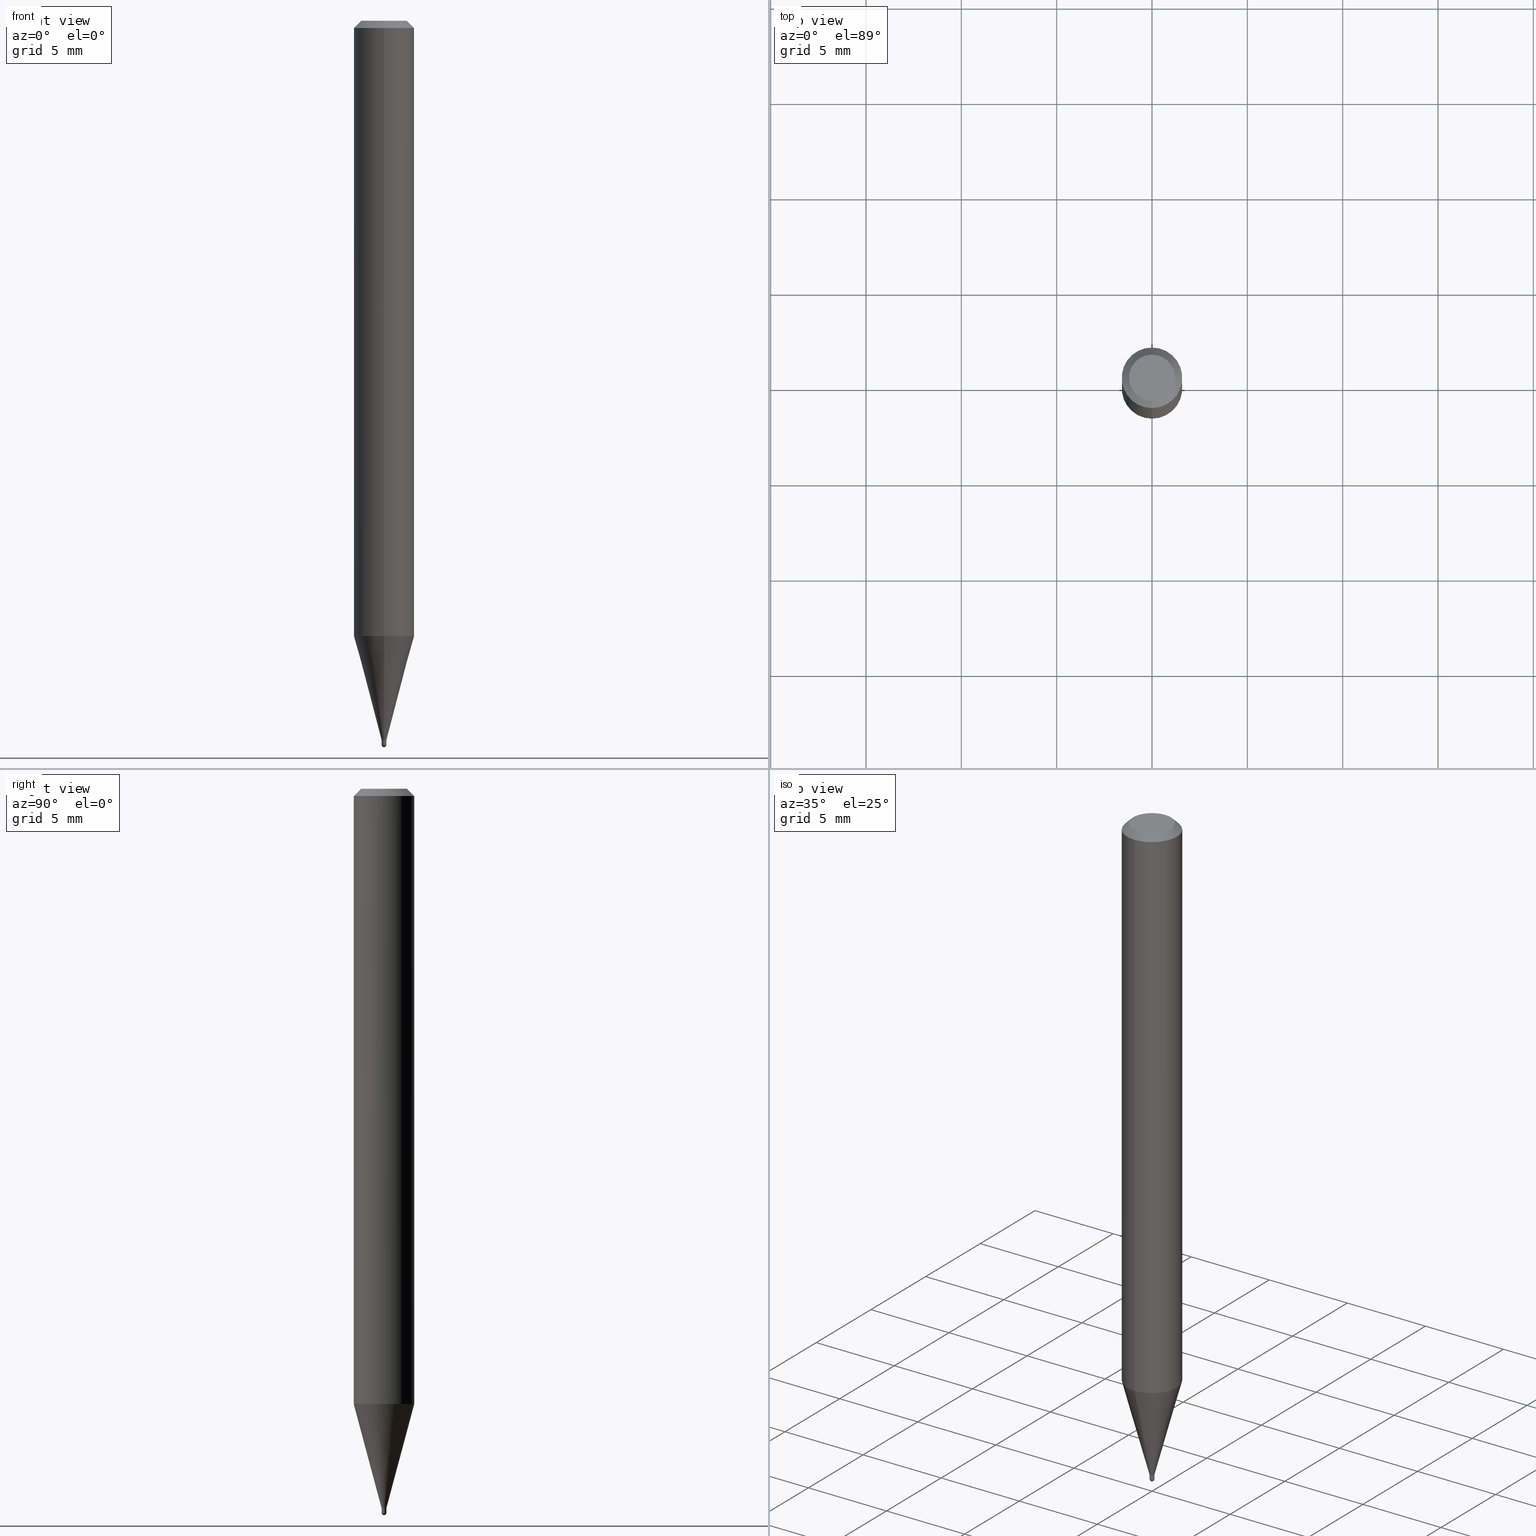
[diagram: canonical four-view strip — front | top / right | iso, engineering-drawing reading convention]
A machine part, canonical four-view strip (front | top / right | iso — engineering-drawing reading convention). The complete STEP part file that produces these views, byte-faithful:
ISO-10303-21;
HEADER;
FILE_DESCRIPTION (( 'STEP AP203' ),
    '1' );
FILE_NAME ('01367.STEP',
    '2024-03-07T19:59:12',
    ( '' ),
    ( '' ),
    'SwSTEP 2.0',
    'SolidWorks 2023',
    '' );
FILE_SCHEMA (( 'CONFIG_CONTROL_DESIGN' ));
ENDSEC;

DATA;
#1 = ADVANCED_FACE ( 'NONE', ( #381 ), #507, .F. ) ;
#2 = CARTESIAN_POINT ( 'NONE',  ( 0.000000000000000000, 0.000000000000000000, 0.000000000000000000 ) ) ;
#3 = CARTESIAN_POINT ( 'NONE',  ( 3.570031653184250291E-29, -5.342841604884812470E-15, -1.495000000000000107 ) ) ;
#4 = DIRECTION ( 'NONE',  ( 1.000000000000000000, -6.982962677686308520E-15, 0.000000000000000000 ) ) ;
#5 = DATE_AND_TIME ( #9, #417 ) ;
#6 = CC_DESIGN_PERSON_AND_ORGANIZATION_ASSIGNMENT ( #321, #370, ( #476 ) ) ;
#7 = CARTESIAN_POINT ( 'NONE',  ( 3.552713678803991097E-17, 0.004999999999994617257, -1.485000000000000098 ) ) ;
#8 = DIRECTION ( 'NONE',  ( -2.446180720103943212E-29, 3.490461837591790659E-15, 1.000000000000000000 ) ) ;
#9 = CALENDAR_DATE ( 2024, 7, 3 ) ;
#10 = VECTOR ( 'NONE', #193, 39.37007874015748143 ) ;
#11 = CIRCLE ( 'NONE', #389, 0.004999999999999800611 ) ;
#12 = FACE_OUTER_BOUND ( 'NONE', #175, .T. ) ;
#13 = ORIENTED_EDGE ( 'NONE', *, *, #191, .T. ) ;
#14 = APPLICATION_PROTOCOL_DEFINITION ( 'international standard', 'config_control_design', 1994, #511 ) ;
#15 = ORIENTED_EDGE ( 'NONE', *, *, #468, .F. ) ;
#16 = EDGE_CURVE ( 'NONE', #489, #424, #103, .T. ) ;
#17 = ORIENTED_EDGE ( 'NONE', *, *, #247, .T. ) ;
#18 = AXIS2_PLACEMENT_3D ( 'NONE', #384, #31, #443 ) ;
#19 = CONICAL_SURFACE ( 'NONE', #312, 0.004999999999999800611, 0.2617993877991576235 ) ;
#20 = ORIENTED_EDGE ( 'NONE', *, *, #218, .T. ) ;
#21 = DIRECTION ( 'NONE',  ( 6.982962677686265133E-15, 1.000000000000000000, 0.000000000000000000 ) ) ;
#22 = VERTEX_POINT ( 'NONE', #383 ) ;
#23 = DIRECTION ( 'NONE',  ( -2.446180720103943212E-29, 3.490461837591790659E-15, 1.000000000000000000 ) ) ;
#24 = DIRECTION ( 'NONE',  ( -6.982962677686265922E-15, -1.000000000000000000, 3.490461837591790659E-15 ) ) ;
#25 = DIRECTION ( 'NONE',  ( -1.807323732225379838E-15, -0.2588190451025252914, 0.9659258262890670910 ) ) ;
#26 = FACE_OUTER_BOUND ( 'NONE', #412, .T. ) ;
#27 = VECTOR ( 'NONE', #277, 39.37007874015748143 ) ;
#28 = AXIS2_PLACEMENT_3D ( 'NONE', #48, #23, #462 ) ;
#29 = DIRECTION ( 'NONE',  ( -6.982962677686265922E-15, -1.000000000000000000, 0.000000000000000000 ) ) ;
#30 = LINE ( 'NONE', #188, #286 ) ;
#31 = DIRECTION ( 'NONE',  ( -2.446180720103943212E-29, 3.490461837591790659E-15, 1.000000000000000000 ) ) ;
#32 =( LENGTH_UNIT ( ) NAMED_UNIT ( * ) SI_UNIT ( $, .METRE. ) );
#33 = DIRECTION ( 'NONE',  ( -6.982962677686265922E-15, -1.000000000000000000, 3.490461837591790264E-15 ) ) ;
#34 =( GEOMETRIC_REPRESENTATION_CONTEXT ( 3 ) GLOBAL_UNCERTAINTY_ASSIGNED_CONTEXT ( ( #457 ) ) GLOBAL_UNIT_ASSIGNED_CONTEXT ( ( #158, #35, #110 ) ) REPRESENTATION_CONTEXT ( 'NONE', 'WORKASPACE' ) );
#35 =( NAMED_UNIT ( * ) PLANE_ANGLE_UNIT ( ) SI_UNIT ( $, .RADIAN. ) );
#36 = DIRECTION ( 'NONE',  ( -2.446180720103943212E-29, 3.490461837591790659E-15, 1.000000000000000000 ) ) ;
#37 = CARTESIAN_POINT ( 'NONE',  ( -4.364351673553606573E-16, -0.06250000000000444089, -1.270407078564795622 ) ) ;
#38 = DIRECTION ( 'NONE',  ( -2.445468806185136597E-29, 3.491481338843145583E-15, 1.000000000000000000 ) ) ;
#39 = APPROVAL_STATUS ( 'not_yet_approved' ) ;
#40 = DIRECTION ( 'NONE',  ( -7.105427357600999492E-15, -1.000000000000000000, 0.000000000000000000 ) ) ;
#41 = CC_DESIGN_PERSON_AND_ORGANIZATION_ASSIGNMENT ( #488, #165, ( #287 ) ) ;
#42 = CIRCLE ( 'NONE', #368, 0.004999999999999800611 ) ;
#43 = EDGE_CURVE ( 'NONE', #22, #98, #67, .T. ) ;
#44 = AXIS2_PLACEMENT_3D ( 'NONE', #115, #385, #233 ) ;
#45 = FACE_OUTER_BOUND ( 'NONE', #181, .T. ) ;
#46 = ORIENTED_EDGE ( 'NONE', *, *, #455, .T. ) ;
#47 = DIRECTION ( 'NONE',  ( -1.000000000000000000, 7.105427357601001070E-15, -4.926315508542082329E-29 ) ) ;
#48 = CARTESIAN_POINT ( 'NONE',  ( 3.632578369354356333E-29, -5.183335828823809468E-15, -1.485000000000000098 ) ) ;
#49 = ORIENTED_EDGE ( 'NONE', *, *, #192, .T. ) ;
#50 = APPROVAL_STATUS ( 'not_yet_approved' ) ;
#51 = AXIS2_PLACEMENT_3D ( 'NONE', #239, #400, #317 ) ;
#52 = CC_DESIGN_APPROVAL ( #182, ( #121 ) ) ;
#53 = CARTESIAN_POINT ( 'NONE',  ( 3.655975865246779122E-29, -5.219764601570503141E-15, -1.495000000000000107 ) ) ;
#54 = ORIENTED_EDGE ( 'NONE', *, *, #497, .F. ) ;
#55 = ADVANCED_FACE ( 'NONE', ( #26 ), #343, .F. ) ;
#56 = ORIENTED_EDGE ( 'NONE', *, *, #396, .F. ) ;
#57 = ORIENTED_EDGE ( 'NONE', *, *, #218, .F. ) ;
#58 = EDGE_CURVE ( 'NONE', #98, #424, #305, .T. ) ;
#59 = AXIS2_PLACEMENT_3D ( 'NONE', #243, #320, #394 ) ;
#60 = AXIS2_PLACEMENT_3D ( 'NONE', #53, #133, #178 ) ;
#61 = ORIENTED_EDGE ( 'NONE', *, *, #192, .F. ) ;
#62 = DIRECTION ( 'NONE',  ( -2.446180720103943212E-29, 3.490461837591790659E-15, 1.000000000000000000 ) ) ;
#63 = CARTESIAN_POINT ( 'NONE',  ( 3.632578369354356894E-29, -5.183335828823810257E-15, -1.485000000000000320 ) ) ;
#64 = FACE_OUTER_BOUND ( 'NONE', #339, .T. ) ;
#65 = ORIENTED_EDGE ( 'NONE', *, *, #344, .F. ) ;
#66 = CARTESIAN_POINT ( 'NONE',  ( 3.197442310923994306E-17, 0.004499999999994691406, -1.485000000000000320 ) ) ;
#67 = CIRCLE ( 'NONE', #235, 0.004499999999999875627 ) ;
#68 = EDGE_CURVE ( 'NONE', #234, #254, #30, .T. ) ;
#69 = LOCAL_TIME ( 14, 59, 12.00000000000000000, #168 ) ;
#70 = VERTEX_POINT ( 'NONE', #470 ) ;
#71 = DIRECTION ( 'NONE',  ( -2.445468806185136597E-29, 3.491481338843145583E-15, 1.000000000000000000 ) ) ;
#72 = ORIENTED_EDGE ( 'NONE', *, *, #16, .F. ) ;
#73 = LENGTH_MEASURE_WITH_UNIT ( LENGTH_MEASURE( 0.02539999999999999897 ), #32 );
#74 = CARTESIAN_POINT ( 'NONE',  ( 4.364351673553919652E-16, 0.06249999999999995143, -0.01500000000000022669 ) ) ;
#75 = CONICAL_SURFACE ( 'NONE', #469, 0.06250000000000000000, 0.7853981633974483900 ) ;
#76 = DIRECTION ( 'NONE',  ( 1.000000000000000000, 0.000000000000000000, 0.000000000000000000 ) ) ;
#77 = CARTESIAN_POINT ( 'NONE',  ( 3.669271080155917288E-31, -5.235692756387689045E-17, -0.01500000000000000812 ) ) ;
#78 = DATE_TIME_ROLE ( 'classification_date' ) ;
#79 = DIRECTION ( 'NONE',  ( -6.982962677686265922E-15, -1.000000000000000000, 0.000000000000000000 ) ) ;
#80 = CALENDAR_DATE ( 2024, 7, 3 ) ;
#81 = CARTESIAN_POINT ( 'NONE',  ( 3.631521177184928698E-29, -5.184849788182072281E-15, -1.485000000000000320 ) ) ;
#82 = CC_DESIGN_PERSON_AND_ORGANIZATION_ASSIGNMENT ( #282, #246, ( #287 ) ) ;
#83 = VECTOR ( 'NONE', #118, 39.37007874015748854 ) ;
#84 = APPROVAL_DATE_TIME ( #439, #427 ) ;
#85 = AXIS2_PLACEMENT_3D ( 'NONE', #291, #428, #149 ) ;
#86 = DIRECTION ( 'NONE',  ( -1.000000000000000000, 6.982962677686265922E-15, -4.883557194083113462E-29 ) ) ;
#87 = DIRECTION ( 'NONE',  ( -6.982962677686265922E-15, -1.000000000000000000, 3.490461837591790264E-15 ) ) ;
#88 = ORIENTED_EDGE ( 'NONE', *, *, #455, .F. ) ;
#89 = APPROVAL_ROLE ( '' ) ;
#90 = PRODUCT_RELATED_PRODUCT_CATEGORY ( 'detail', '', ( #297 ) ) ;
#91 = EDGE_CURVE ( 'NONE', #70, #424, #112, .T. ) ;
#92 = DIRECTION ( 'NONE',  ( 2.446180720103943212E-29, -3.490461837591790659E-15, -1.000000000000000000 ) ) ;
#93 = ORIENTED_EDGE ( 'NONE', *, *, #256, .T. ) ;
#94 = AXIS2_PLACEMENT_3D ( 'NONE', #435, #86, #125 ) ;
#95 = APPLICATION_CONTEXT ( 'configuration controlled 3d designs of mechanical parts and assemblies' ) ;
#96 = CIRCLE ( 'NONE', #376, 0.004999999999999878673 ) ;
#97 = ORIENTED_EDGE ( 'NONE', *, *, #444, .T. ) ;
#98 = VERTEX_POINT ( 'NONE', #467 ) ;
#99 = CC_DESIGN_PERSON_AND_ORGANIZATION_ASSIGNMENT ( #432, #190, ( #297 ) ) ;
#100 = EDGE_CURVE ( 'NONE', #186, #408, #275, .T. ) ;
#101 = ORIENTED_EDGE ( 'NONE', *, *, #247, .F. ) ;
#102 = DIRECTION ( 'NONE',  ( -2.446180720103943212E-29, 3.490461837591790659E-15, 1.000000000000000000 ) ) ;
#103 = CIRCLE ( 'NONE', #245, 0.004999999999999801478 ) ;
#104 = APPROVAL_PERSON_ORGANIZATION ( #441, #427, #328 ) ;
#105 = ORIENTED_EDGE ( 'NONE', *, *, #401, .T. ) ;
#106 = FACE_OUTER_BOUND ( 'NONE', #496, .T. ) ;
#107 = CARTESIAN_POINT ( 'NONE',  ( 0.000000000000000000, 0.000000000000000000, 0.000000000000000000 ) ) ;
#108 = CYLINDRICAL_SURFACE ( 'NONE', #460, 0.004999999999999801478 ) ;
#109 = EDGE_LOOP ( 'NONE', ( #212, #171, #72, #334 ) ) ;
#110 =( NAMED_UNIT ( * ) SI_UNIT ( $, .STERADIAN. ) SOLID_ANGLE_UNIT ( ) );
#111 = CONICAL_SURFACE ( 'NONE', #351, 0.004499999999999875627, 0.7853981633974753684 ) ;
#112 = LINE ( 'NONE', #150, #10 ) ;
#113 = CARTESIAN_POINT ( 'NONE',  ( 3.631521177184928698E-29, -5.184849788182072281E-15, -1.485000000000000320 ) ) ;
#114 = ORIENTED_EDGE ( 'NONE', *, *, #344, .T. ) ;
#115 = CARTESIAN_POINT ( 'NONE',  ( 3.655975865246779122E-29, -5.219764601570503141E-15, -1.495000000000000107 ) ) ;
#116 = FACE_OUTER_BOUND ( 'NONE', #179, .T. ) ;
#117 = PERSON ( 'UNSPECIFIED', 'UNSPECIFIED', 'UNSPECIFIED', ('UNSPECIFIED'), ('UNSPECIFIED'), ('UNSPECIFIED') ) ;
#118 = DIRECTION ( 'NONE',  ( 1.839019923739650408E-15, 0.2588190451025320082, 0.9659258262890650926 ) ) ;
#119 = AXIS2_PLACEMENT_3D ( 'NONE', #77, #281, #359 ) ;
#120 = ORIENTED_EDGE ( 'NONE', *, *, #433, .F. ) ;
#121 = SECURITY_CLASSIFICATION ( '', '', #242 ) ;
#122 = CARTESIAN_POINT ( 'NONE',  ( 4.440892098500625669E-16, 0.06250000000000000000, -2.181538648494869162E-16 ) ) ;
#123 = CARTESIAN_POINT ( 'NONE',  ( -0.004999999999999878673, -5.166780058088283853E-15, -1.495000000000000107 ) ) ;
#124 = COORDINATED_UNIVERSAL_TIME_OFFSET ( 5, 0, .BEHIND. ) ;
#125 = DIRECTION ( 'NONE',  ( 6.982962677686265922E-15, 1.000000000000000000, 0.000000000000000000 ) ) ;
#126 = EDGE_CURVE ( 'NONE', #139, #454, #366, .T. ) ;
#127 = APPROVAL_ROLE ( '' ) ;
#128 = DIRECTION ( 'NONE',  ( 6.982962677686265922E-15, 1.000000000000000000, 0.000000000000000000 ) ) ;
#129 = AXIS2_PLACEMENT_3D ( 'NONE', #170, #486, #448 ) ;
#130 = CARTESIAN_POINT ( 'NONE',  ( -4.364351673553912750E-16, -0.06250000000000005551, -0.01499999999999979128 ) ) ;
#131 = ORIENTED_EDGE ( 'NONE', *, *, #201, .T. ) ;
#132 = EDGE_CURVE ( 'NONE', #219, #489, #440, .T. ) ;
#133 = DIRECTION ( 'NONE',  ( -2.445468806185136597E-29, 3.491481338843145583E-15, 1.000000000000000000 ) ) ;
#134 = VERTEX_POINT ( 'NONE', #157 ) ;
#135 = PERSON_AND_ORGANIZATION_ROLE ( 'classification_officer' ) ;
#136 = ORIENTED_EDGE ( 'NONE', *, *, #126, .F. ) ;
#137 = CIRCLE ( 'NONE', #425, 0.004999999999999878673 ) ;
#138 = ORIENTED_EDGE ( 'NONE', *, *, #43, .F. ) ;
#139 = VERTEX_POINT ( 'NONE', #318 ) ;
#140 = MANIFOLD_SOLID_BREP ( 'Body-Move/Copy2[1]', #414 ) ;
#141 = DIRECTION ( 'NONE',  ( -4.937700262164681360E-15, -0.7071067811865642261, 0.7071067811865308084 ) ) ;
#142 = DIRECTION ( 'NONE',  ( -2.446180720103943212E-29, 3.490461837591790659E-15, 1.000000000000000000 ) ) ;
#143 = DIRECTION ( 'NONE',  ( -6.982962677686265922E-15, -1.000000000000000000, 0.000000000000000000 ) ) ;
#144 = CIRCLE ( 'NONE', #44, 0.004999999999999878673 ) ;
#145 = ORIENTED_EDGE ( 'NONE', *, *, #444, .F. ) ;
#146 = FACE_OUTER_BOUND ( 'NONE', #252, .T. ) ;
#147 = EDGE_CURVE ( 'NONE', #454, #232, #244, .T. ) ;
#148 = ORIENTED_EDGE ( 'NONE', *, *, #262, .F. ) ;
#149 = DIRECTION ( 'NONE',  ( -6.982962677686265922E-15, -1.000000000000000000, 4.370956789862821150E-15 ) ) ;
#150 = CARTESIAN_POINT ( 'NONE',  ( 3.552713678800359255E-17, 0.004999999999999801478, -1.745230918795825885E-17 ) ) ;
#151 = DIRECTION ( 'NONE',  ( -6.982962677686265922E-15, -1.000000000000000000, 3.490461837591790659E-15 ) ) ;
#152 = ORIENTED_EDGE ( 'NONE', *, *, #262, .T. ) ;
#153 = CIRCLE ( 'NONE', #260, 0.06250000000000000000 ) ;
#154 = CARTESIAN_POINT ( 'NONE',  ( -4.364351673553916201E-16, -0.06250000000000000000, 2.181538648494869162E-16 ) ) ;
#155 = DIRECTION ( 'NONE',  ( -6.982962677686265922E-15, -1.000000000000000000, 3.490461837591790659E-15 ) ) ;
#156 = CARTESIAN_POINT ( 'NONE',  ( 3.840629472727447874E-16, 0.04749999999999999362, -1.747056831868805136E-16 ) ) ;
#157 = CARTESIAN_POINT ( 'NONE',  ( 4.440892098500935790E-16, 0.06249999999999556605, -1.270407078564796288 ) ) ;
#158 =( CONVERSION_BASED_UNIT ( 'INCH', #73 ) LENGTH_UNIT ( ) NAMED_UNIT ( #248 ) );
#159 = CARTESIAN_POINT ( 'NONE',  ( 3.632578369354356894E-29, -5.183335828823810257E-15, -1.485000000000000320 ) ) ;
#160 = AXIS2_PLACEMENT_3D ( 'NONE', #81, #38, #315 ) ;
#161 = VECTOR ( 'NONE', #25, 39.37007874015748143 ) ;
#162 = DIRECTION ( 'NONE',  ( -1.000000000000000000, 6.982962677686265922E-15, -4.883557194083113462E-29 ) ) ;
#163 = APPROVAL_DATE_TIME ( #5, #490 ) ;
#164 = FACE_OUTER_BOUND ( 'NONE', #109, .T. ) ;
#165 = PERSON_AND_ORGANIZATION_ROLE ( 'creator' ) ;
#166 = CARTESIAN_POINT ( 'NONE',  ( 3.669271080155917288E-31, -5.235692756387689045E-17, -0.01500000000000000812 ) ) ;
#167 = VECTOR ( 'NONE', #308, 39.37007874015748143 ) ;
#168 = COORDINATED_UNIVERSAL_TIME_OFFSET ( 5, 0, .BEHIND. ) ;
#169 = APPROVAL_PERSON_ORGANIZATION ( #399, #182, #89 ) ;
#170 = CARTESIAN_POINT ( 'NONE',  ( 0.000000000000000000, 0.000000000000000000, 0.000000000000000000 ) ) ;
#171 = ORIENTED_EDGE ( 'NONE', *, *, #58, .T. ) ;
#172 = APPROVAL_STATUS ( 'not_yet_approved' ) ;
#173 = ORIENTED_EDGE ( 'NONE', *, *, #421, .T. ) ;
#174 = EDGE_CURVE ( 'NONE', #403, #292, #483, .T. ) ;
#175 = EDGE_LOOP ( 'NONE', ( #347, #456, #114, #267, #88 ) ) ;
#176 = ADVANCED_FACE ( 'NONE', ( #164 ), #358, .T. ) ;
#177 = ORIENTED_EDGE ( 'NONE', *, *, #468, .T. ) ;
#178 = DIRECTION ( 'NONE',  ( 1.000000000000000000, -6.982962677686308520E-15, 0.000000000000000000 ) ) ;
#179 = EDGE_LOOP ( 'NONE', ( #148, #459, #54, #303 ) ) ;
#180 = LINE ( 'NONE', #221, #161 ) ;
#181 = EDGE_LOOP ( 'NONE', ( #255, #152, #101, #65 ) ) ;
#182 = APPROVAL ( #39, 'UNSPECIFIED' ) ;
#183 = CARTESIAN_POINT ( 'NONE',  ( 3.669271080155917288E-31, -5.235692756387689045E-17, -0.01500000000000000812 ) ) ;
#184 = AXIS2_PLACEMENT_3D ( 'NONE', #3, #162, #128 ) ;
#185 = LOCAL_TIME ( 14, 59, 12.00000000000000000, #209 ) ;
#186 = VERTEX_POINT ( 'NONE', #478 ) ;
#187 = LINE ( 'NONE', #122, #484 ) ;
#188 = CARTESIAN_POINT ( 'NONE',  ( -0.004999999999999878673, 3.552713678800414722E-17, -2.459467545127393143E-31 ) ) ;
#189 = ADVANCED_FACE ( 'NONE', ( #437 ), #353, .T. ) ;
#190 = PERSON_AND_ORGANIZATION_ROLE ( 'design_owner' ) ;
#191 = EDGE_CURVE ( 'NONE', #258, #234, #195, .T. ) ;
#192 = EDGE_CURVE ( 'NONE', #70, #134, #390, .T. ) ;
#193 = DIRECTION ( 'NONE',  ( -2.446180720103942932E-29, 3.490461837591790659E-15, 1.000000000000000000 ) ) ;
#194 = LINE ( 'NONE', #509, #279 ) ;
#195 = CIRCLE ( 'NONE', #311, 0.004999999999999878673 ) ;
#196 = CARTESIAN_POINT ( 'NONE',  ( 3.632578369354356894E-29, -5.183335828823810257E-15, -1.485000000000000320 ) ) ;
#197 = CIRCLE ( 'NONE', #85, 0.06250000000000000000 ) ;
#198 = SPHERICAL_SURFACE ( 'NONE', #94, 0.005000000000000179648 ) ;
#199 = DIRECTION ( 'NONE',  ( -2.446180720103942932E-29, 3.490461837591790659E-15, 1.000000000000000000 ) ) ;
#200 = CARTESIAN_POINT ( 'NONE',  ( 4.440892098500937762E-16, 0.06249999999999993755, -0.01500000000000022669 ) ) ;
#201 = EDGE_CURVE ( 'NONE', #408, #254, #259, .T. ) ;
#202 = CARTESIAN_POINT ( 'NONE',  ( 3.655975865246779122E-29, -5.219764601570503141E-15, -1.495000000000000107 ) ) ;
#203 = AXIS2_PLACEMENT_3D ( 'NONE', #402, #485, #21 ) ;
#204 = AXIS2_PLACEMENT_3D ( 'NONE', #207, #322, #481 ) ;
#205 = AXIS2_PLACEMENT_3D ( 'NONE', #183, #92, #299 ) ;
#206 = CALENDAR_DATE ( 2024, 7, 3 ) ;
#207 = CARTESIAN_POINT ( 'NONE',  ( 3.631355278994305397E-29, -5.181590597905014741E-15, -1.484500000000000597 ) ) ;
#208 = ORIENTED_EDGE ( 'NONE', *, *, #132, .F. ) ;
#209 = COORDINATED_UNIVERSAL_TIME_OFFSET ( 5, 0, .BEHIND. ) ;
#210 = DIRECTION ( 'NONE',  ( -6.982962677686265922E-15, -1.000000000000000000, 0.000000000000000000 ) ) ;
#211 = CYLINDRICAL_SURFACE ( 'NONE', #129, 0.004999999999999878673 ) ;
#212 = ORIENTED_EDGE ( 'NONE', *, *, #43, .T. ) ;
#213 = COORDINATED_UNIVERSAL_TIME_OFFSET ( 5, 0, .BEHIND. ) ;
#214 = APPROVAL_PERSON_ORGANIZATION ( #288, #490, #127 ) ;
#215 = CARTESIAN_POINT ( 'NONE',  ( 3.491481338846766553E-17, 0.004999999999994747361, -1.495000000000000107 ) ) ;
#216 = EDGE_LOOP ( 'NONE', ( #377, #217, #226, #224 ) ) ;
#217 = ORIENTED_EDGE ( 'NONE', *, *, #240, .T. ) ;
#218 = EDGE_CURVE ( 'NONE', #349, #232, #278, .T. ) ;
#219 = VERTEX_POINT ( 'NONE', #472 ) ;
#220 = ORIENTED_EDGE ( 'NONE', *, *, #506, .F. ) ;
#221 = CARTESIAN_POINT ( 'NONE',  ( -3.491481338839360505E-17, -0.005000000000004983097, -1.485000000000000098 ) ) ;
#222 = CC_DESIGN_DATE_AND_TIME_ASSIGNMENT ( #284, #480, ( #476 ) ) ;
#223 = ADVANCED_FACE ( 'NONE', ( #116 ), #357, .T. ) ;
#224 = ORIENTED_EDGE ( 'NONE', *, *, #256, .F. ) ;
#225 = DIRECTION ( 'NONE',  ( -6.982962677686266711E-15, -1.000000000000000000, 3.490461837591791053E-15 ) ) ;
#226 = ORIENTED_EDGE ( 'NONE', *, *, #354, .T. ) ;
#227 = DIRECTION ( 'NONE',  ( -2.446180720103943212E-29, 3.490461837591790659E-15, 1.000000000000000000 ) ) ;
#228 = CIRCLE ( 'NONE', #204, 0.004999999999999801478 ) ;
#229 = CONICAL_SURFACE ( 'NONE', #28, 0.004999999999999800611, 0.2617993877991576235 ) ;
#230 = ORIENTED_EDGE ( 'NONE', *, *, #346, .T. ) ;
#231 = ADVANCED_FACE ( 'NONE', ( #45 ), #198, .T. ) ;
#232 = VERTEX_POINT ( 'NONE', #200 ) ;
#233 = DIRECTION ( 'NONE',  ( 1.000000000000000000, -6.982962677686308520E-15, 0.000000000000000000 ) ) ;
#234 = VERTEX_POINT ( 'NONE', #123 ) ;
#235 = AXIS2_PLACEMENT_3D ( 'NONE', #196, #142, #263 ) ;
#236 = DIRECTION ( 'NONE',  ( 1.000000000000000000, -6.982962677686308520E-15, 0.000000000000000000 ) ) ;
#237 = AXIS2_PLACEMENT_3D ( 'NONE', #391, #280, #76 ) ;
#238 = CARTESIAN_POINT ( 'NONE',  ( 3.669271080155917288E-31, -5.235692756387689045E-17, -0.01500000000000000812 ) ) ;
#239 = CARTESIAN_POINT ( 'NONE',  ( 3.632578369354356894E-29, -5.183335828823810257E-15, -1.485000000000000320 ) ) ;
#240 = EDGE_CURVE ( 'NONE', #98, #22, #382, .T. ) ;
#241 = ADVANCED_FACE ( 'NONE', ( #355 ), #249, .F. ) ;
#242 = SECURITY_CLASSIFICATION_LEVEL ( 'unclassified' ) ;
#243 = CARTESIAN_POINT ( 'NONE',  ( 3.491481338846679039E-17, 0.004999999999994693585, -1.485000000000000098 ) ) ;
#244 = LINE ( 'NONE', #74, #27 ) ;
#245 = AXIS2_PLACEMENT_3D ( 'NONE', #422, #313, #387 ) ;
#246 = PERSON_AND_ORGANIZATION_ROLE ( 'design_supplier' ) ;
#247 = EDGE_CURVE ( 'NONE', #186, #258, #137, .T. ) ;
#248 = DIMENSIONAL_EXPONENTS ( 1.000000000000000000, 0.000000000000000000, 0.000000000000000000, 0.000000000000000000, 0.000000000000000000, 0.000000000000000000, 0.000000000000000000 ) ;
#249 = PLANE ( 'NONE',  #59 ) ;
#250 = CALENDAR_DATE ( 2024, 7, 3 ) ;
#251 = DIRECTION ( 'NONE',  ( 1.000000000000000000, -6.982962677686265133E-15, 4.876176775795935793E-29 ) ) ;
#252 = EDGE_LOOP ( 'NONE', ( #13, #369, #379, #257, #17 ) ) ;
#253 = FACE_OUTER_BOUND ( 'NONE', #487, .T. ) ;
#254 = VERTEX_POINT ( 'NONE', #283 ) ;
#255 = ORIENTED_EDGE ( 'NONE', *, *, #174, .F. ) ;
#256 = EDGE_CURVE ( 'NONE', #424, #489, #228, .T. ) ;
#257 = ORIENTED_EDGE ( 'NONE', *, *, #100, .F. ) ;
#258 = VERTEX_POINT ( 'NONE', #215 ) ;
#259 = CIRCLE ( 'NONE', #160, 0.004999999999999878673 ) ;
#261 = CARTESIAN_POINT ( 'NONE',  ( -3.552713678796906756E-17, -0.005000000000005310093, -1.495000000000000107 ) ) ;
#260 = AXIS2_PLACEMENT_3D ( 'NONE', #238, #268, #388 ) ;
#262 = EDGE_CURVE ( 'NONE', #403, #258, #491, .T. ) ;
#263 = DIRECTION ( 'NONE',  ( -6.982962677686265922E-15, -1.000000000000000000, 0.000000000000000000 ) ) ;
#264 = DIRECTION ( 'NONE',  ( -2.446180720103943212E-29, 3.490461837591790659E-15, 1.000000000000000000 ) ) ;
#265 = ORIENTED_EDGE ( 'NONE', *, *, #461, .T. ) ;
#266 = FACE_OUTER_BOUND ( 'NONE', #463, .T. ) ;
#267 = ORIENTED_EDGE ( 'NONE', *, *, #100, .T. ) ;
#268 = DIRECTION ( 'NONE',  ( -2.446180720103943212E-29, 3.490461837591790659E-15, 1.000000000000000000 ) ) ;
#269 = AXIS2_PLACEMENT_3D ( 'NONE', #380, #302, #405 ) ;
#270 = CIRCLE ( 'NONE', #434, 0.06250000000000000000 ) ;
#271 = CC_DESIGN_APPROVAL ( #427, ( #287 ) ) ;
#272 = CARTESIAN_POINT ( 'NONE',  ( 0.004999999999999878673, -3.491481338843047813E-17, 2.438088387897908867E-31 ) ) ;
#273 = ADVANCED_FACE ( 'NONE', ( #253 ), #335, .F. ) ;
#274 = DIRECTION ( 'NONE',  ( 1.000000000000000000, -6.982962677686308520E-15, 0.000000000000000000 ) ) ;
#275 = LINE ( 'NONE', #272, #294 ) ;
#276 = DIRECTION ( 'NONE',  ( -4.851104656540964275E-15, -0.7071067811865500152, -0.7071067811865450192 ) ) ;
#277 = DIRECTION ( 'NONE',  ( 4.937700262164548042E-15, 0.7071067811865451302, -0.7071067811865499042 ) ) ;
#278 = CIRCLE ( 'NONE', #119, 0.06250000000000000000 ) ;
#279 = VECTOR ( 'NONE', #276, 39.37007874015748143 ) ;
#280 = DIRECTION ( 'NONE',  ( 0.000000000000000000, 0.000000000000000000, 1.000000000000000000 ) ) ;
#281 = DIRECTION ( 'NONE',  ( -2.446180720103943212E-29, 3.490461837591790659E-15, 1.000000000000000000 ) ) ;
#282 = PERSON_AND_ORGANIZATION ( #117, #508 ) ;
#283 = CARTESIAN_POINT ( 'NONE',  ( -0.004999999999999878673, -5.166780058088283853E-15, -1.485000000000000320 ) ) ;
#284 = DATE_AND_TIME ( #80, #295 ) ;
#285 = CARTESIAN_POINT ( 'NONE',  ( 0.000000000000000000, 0.000000000000000000, 0.000000000000000000 ) ) ;
#286 = VECTOR ( 'NONE', #504, 39.37007874015748143 ) ;
#287 = PRODUCT_DEFINITION_FORMATION_WITH_SPECIFIED_SOURCE ( 'ANY', '', #297, .NOT_KNOWN. ) ;
#288 = PERSON_AND_ORGANIZATION ( #117, #508 ) ;
#289 = CARTESIAN_POINT ( 'NONE',  ( 0.000000000000000000, 0.000000000000000000, 0.000000000000000000 ) ) ;
#290 = ORIENTED_EDGE ( 'NONE', *, *, #147, .F. ) ;
#291 = CARTESIAN_POINT ( 'NONE',  ( 3.107645302268779211E-29, -4.434307425936895127E-15, -1.270407078564796066 ) ) ;
#292 = VERTEX_POINT ( 'NONE', #261 ) ;
#293 = ORIENTED_EDGE ( 'NONE', *, *, #401, .F. ) ;
#294 = VECTOR ( 'NONE', #426, 39.37007874015748143 ) ;
#295 = LOCAL_TIME ( 14, 59, 12.00000000000000000, #404 ) ;
#296 = EDGE_LOOP ( 'NONE', ( #375, #298, #465, #429 ) ) ;
#297 = PRODUCT ( '01367', '01367', '', ( #474 ) ) ;
#298 = ORIENTED_EDGE ( 'NONE', *, *, #346, .F. ) ;
#299 = DIRECTION ( 'NONE',  ( 6.982962677686265922E-15, 1.000000000000000000, -3.483106191921935554E-15 ) ) ;
#300 = ORIENTED_EDGE ( 'NONE', *, *, #438, .T. ) ;
#302 = DIRECTION ( 'NONE',  ( 2.446180720103942932E-29, -3.490461837591790659E-15, -1.000000000000000000 ) ) ;
#301 = LOCAL_TIME ( 14, 59, 12.00000000000000000, #124 ) ;
#303 = ORIENTED_EDGE ( 'NONE', *, *, #191, .F. ) ;
#304 = CYLINDRICAL_SURFACE ( 'NONE', #332, 0.004999999999999878673 ) ;
#305 = LINE ( 'NONE', #66, #167 ) ;
#306 = DIRECTION ( 'NONE',  ( -2.446180720103942932E-29, 3.490461837591790659E-15, 1.000000000000000000 ) ) ;
#307 = ADVANCED_FACE ( 'NONE', ( #371 ), #111, .T. ) ;
#308 = DIRECTION ( 'NONE',  ( 5.024295867788198074E-15, 0.7071067811865691111, 0.7071067811865259234 ) ) ;
#309 = MANIFOLD_SOLID_BREP ( 'Body-Move/Copy2[2]', #324 ) ;
#310 = CARTESIAN_POINT ( 'NONE',  ( -3.491481338839373447E-17, -0.005000000000004999577, -1.484500000000000597 ) ) ;
#311 = AXIS2_PLACEMENT_3D ( 'NONE', #398, #361, #236 ) ;
#312 = AXIS2_PLACEMENT_3D ( 'NONE', #364, #102, #418 ) ;
#313 = DIRECTION ( 'NONE',  ( -2.446180720103943212E-29, 3.490461837591790659E-15, 1.000000000000000000 ) ) ;
#314 = CARTESIAN_POINT ( 'NONE',  ( 3.552713678803980003E-17, 0.004999999999994603379, -1.484500000000000597 ) ) ;
#315 = DIRECTION ( 'NONE',  ( 1.000000000000000000, -6.982962677686308520E-15, 0.000000000000000000 ) ) ;
#316 = ADVANCED_FACE ( 'NONE', ( #106 ), #397, .T. ) ;
#317 = DIRECTION ( 'NONE',  ( -6.982962677686265922E-15, -1.000000000000000000, 0.000000000000000000 ) ) ;
#318 = CARTESIAN_POINT ( 'NONE',  ( -3.773273898774340269E-16, -0.04749999999999999362, 1.568881913843395871E-16 ) ) ;
#319 = PERSON_AND_ORGANIZATION ( #117, #508 ) ;
#320 = DIRECTION ( 'NONE',  ( 2.438088387897960049E-29, -3.491481338843145188E-15, -1.000000000000000000 ) ) ;
#321 = PERSON_AND_ORGANIZATION ( #117, #508 ) ;
#322 = DIRECTION ( 'NONE',  ( -2.446180720103943212E-29, 3.490461837591790659E-15, 1.000000000000000000 ) ) ;
#323 = CARTESIAN_POINT ( 'NONE',  ( 3.582472788787471331E-29, -5.359992849879241993E-15, -1.500000000000000222 ) ) ;
#324 = CLOSED_SHELL ( 'NONE', ( #333, #176, #360, #482, #374, #386, #189, #316, #273, #55, #307, #1 ) ) ;
#325 = APPROVAL_DATE_TIME ( #393, #182 ) ;
#326 = DIRECTION ( 'NONE',  ( 6.982962677686265922E-15, 1.000000000000000000, -3.483106191921935554E-15 ) ) ;
#327 = EDGE_LOOP ( 'NONE', ( #173, #177, #57, #145 ) ) ;
#328 = APPROVAL_ROLE ( '' ) ;
#329 = ORIENTED_EDGE ( 'NONE', *, *, #421, .F. ) ;
#330 = ORIENTED_EDGE ( 'NONE', *, *, #433, .T. ) ;
#331 = AXIS2_PLACEMENT_3D ( 'NONE', #63, #502, #24 ) ;
#332 = AXIS2_PLACEMENT_3D ( 'NONE', #289, #445, #251 ) ;
#333 = ADVANCED_FACE ( 'NONE', ( #378 ), #108, .F. ) ;
#334 = ORIENTED_EDGE ( 'NONE', *, *, #354, .F. ) ;
#335 = PLANE ( 'NONE',  #269 ) ;
#336 = EDGE_LOOP ( 'NONE', ( #131, #46 ) ) ;
#337 = CARTESIAN_POINT ( 'NONE',  ( 3.632578369354356894E-29, -5.183335828823810257E-15, -1.485000000000000320 ) ) ;
#338 = ADVANCED_BREP_SHAPE_REPRESENTATION ( '01367', ( #140, #309, #237 ), #34 ) ;
#339 = EDGE_LOOP ( 'NONE', ( #136, #300, #20, #290 ) ) ;
#340 = AXIS2_PLACEMENT_3D ( 'NONE', #285, #510, #155 ) ;
#342 = DIRECTION ( 'NONE',  ( 2.446180720103943212E-29, -3.490461837591790659E-15, -1.000000000000000000 ) ) ;
#341 = VECTOR ( 'NONE', #306, 39.37007874015748143 ) ;
#343 = PLANE ( 'NONE',  #331 ) ;
#344 = EDGE_CURVE ( 'NONE', #292, #186, #492, .T. ) ;
#345 = LINE ( 'NONE', #154, #341 ) ;
#346 = EDGE_CURVE ( 'NONE', #219, #70, #11, .T. ) ;
#347 = ORIENTED_EDGE ( 'NONE', *, *, #68, .F. ) ;
#348 = DIRECTION ( 'NONE',  ( -2.446180720103943212E-29, 3.490461837591790659E-15, 1.000000000000000000 ) ) ;
#349 = VERTEX_POINT ( 'NONE', #130 ) ;
#350 = DIRECTION ( 'NONE',  ( -6.982962677686265922E-15, -1.000000000000000000, 4.370956789862821150E-15 ) ) ;
#351 = AXIS2_PLACEMENT_3D ( 'NONE', #337, #62, #143 ) ;
#352 = AXIS2_PLACEMENT_3D ( 'NONE', #498, #420, #225 ) ;
#353 = CYLINDRICAL_SURFACE ( 'NONE', #340, 0.06250000000000000000 ) ;
#354 = EDGE_CURVE ( 'NONE', #22, #489, #495, .T. ) ;
#355 = FACE_OUTER_BOUND ( 'NONE', #336, .T. ) ;
#356 = FACE_OUTER_BOUND ( 'NONE', #327, .T. ) ;
#357 = SPHERICAL_SURFACE ( 'NONE', #184, 0.005000000000000179648 ) ;
#358 = CONICAL_SURFACE ( 'NONE', #51, 0.004499999999999875627, 0.7853981633974753684 ) ;
#359 = DIRECTION ( 'NONE',  ( -6.982962677686265922E-15, -1.000000000000000000, 3.483106191921935554E-15 ) ) ;
#360 = ADVANCED_FACE ( 'NONE', ( #64 ), #75, .T. ) ;
#361 = DIRECTION ( 'NONE',  ( -2.445468806185136597E-29, 3.491481338843145583E-15, 1.000000000000000000 ) ) ;
#362 = EDGE_LOOP ( 'NONE', ( #120, #499, #93, #208 ) ) ;
#363 = CALENDAR_DATE ( 2024, 7, 3 ) ;
#364 = CARTESIAN_POINT ( 'NONE',  ( 3.632578369354356333E-29, -5.183335828823809468E-15, -1.485000000000000098 ) ) ;
#365 = CARTESIAN_POINT ( 'NONE',  ( 3.632578369354356333E-29, -5.183335828823809468E-15, -1.485000000000000098 ) ) ;
#366 = CIRCLE ( 'NONE', #18, 0.04749999999999999362 ) ;
#367 = CC_DESIGN_PERSON_AND_ORGANIZATION_ASSIGNMENT ( #319, #135, ( #121 ) ) ;
#368 = AXIS2_PLACEMENT_3D ( 'NONE', #505, #348, #29 ) ;
#369 = ORIENTED_EDGE ( 'NONE', *, *, #68, .T. ) ;
#370 = PERSON_AND_ORGANIZATION_ROLE ( 'creator' ) ;
#371 = FACE_OUTER_BOUND ( 'NONE', #216, .T. ) ;
#372 = ORIENTED_EDGE ( 'NONE', *, *, #147, .T. ) ;
#373 = EDGE_LOOP ( 'NONE', ( #15, #415, #97, #409 ) ) ;
#374 = ADVANCED_FACE ( 'NONE', ( #458 ), #229, .T. ) ;
#375 = ORIENTED_EDGE ( 'NONE', *, *, #91, .F. ) ;
#376 = AXIS2_PLACEMENT_3D ( 'NONE', #113, #71, #274 ) ;
#377 = ORIENTED_EDGE ( 'NONE', *, *, #58, .F. ) ;
#378 = FACE_OUTER_BOUND ( 'NONE', #362, .T. ) ;
#379 = ORIENTED_EDGE ( 'NONE', *, *, #201, .F. ) ;
#380 = CARTESIAN_POINT ( 'NONE',  ( 3.316907271900976096E-16, 0.04749999999999999362, -1.702513102362452697E-16 ) ) ;
#381 = FACE_OUTER_BOUND ( 'NONE', #296, .T. ) ;
#382 = CIRCLE ( 'NONE', #450, 0.004499999999999875627 ) ;
#383 = CARTESIAN_POINT ( 'NONE',  ( -3.142333204955099850E-17, -0.004500000000005058981, -1.485000000000000320 ) ) ;
#384 = CARTESIAN_POINT ( 'NONE',  ( 2.179240246399283685E-46, -3.109563758918684453E-32, -8.908745901270464794E-18 ) ) ;
#385 = DIRECTION ( 'NONE',  ( -2.445468806185136597E-29, 3.491481338843145583E-15, 1.000000000000000000 ) ) ;
#386 = ADVANCED_FACE ( 'NONE', ( #266 ), #19, .T. ) ;
#387 = DIRECTION ( 'NONE',  ( -6.982962677686265922E-15, -1.000000000000000000, 0.000000000000000000 ) ) ;
#388 = DIRECTION ( 'NONE',  ( -6.982962677686265922E-15, -1.000000000000000000, 3.483106191921935554E-15 ) ) ;
#389 = AXIS2_PLACEMENT_3D ( 'NONE', #365, #264, #210 ) ;
#390 = LINE ( 'NONE', #7, #83 ) ;
#391 = CARTESIAN_POINT ( 'NONE',  ( 0.000000000000000000, 0.000000000000000000, 0.000000000000000000 ) ) ;
#392 = DIRECTION ( 'NONE',  ( -2.446180720103942932E-29, 3.490461837591790659E-15, 1.000000000000000000 ) ) ;
#393 = DATE_AND_TIME ( #250, #301 ) ;
#394 = DIRECTION ( 'NONE',  ( -1.000000000000000000, 6.982962677686265922E-15, -4.876176775795935793E-29 ) ) ;
#395 = CC_DESIGN_DATE_AND_TIME_ASSIGNMENT ( #436, #78, ( #121 ) ) ;
#396 = EDGE_CURVE ( 'NONE', #454, #139, #407, .T. ) ;
#397 = CONICAL_SURFACE ( 'NONE', #205, 0.06250000000000000000, 0.7853981633974483900 ) ;
#398 = CARTESIAN_POINT ( 'NONE',  ( 3.655975865246779122E-29, -5.219764601570503141E-15, -1.495000000000000107 ) ) ;
#399 = PERSON_AND_ORGANIZATION ( #117, #508 ) ;
#400 = DIRECTION ( 'NONE',  ( -2.446180720103943212E-29, 3.490461837591790659E-15, 1.000000000000000000 ) ) ;
#401 = EDGE_CURVE ( 'NONE', #219, #446, #180, .T. ) ;
#402 = CARTESIAN_POINT ( 'NONE',  ( 3.570031653184250291E-29, -5.342841604884812470E-15, -1.495000000000000107 ) ) ;
#403 = VERTEX_POINT ( 'NONE', #323 ) ;
#404 = COORDINATED_UNIVERSAL_TIME_OFFSET ( 5, 0, .BEHIND. ) ;
#405 = DIRECTION ( 'NONE',  ( 6.982962677686265922E-15, 1.000000000000000000, -3.490461837591790659E-15 ) ) ;
#406 = AXIS2_PLACEMENT_3D ( 'NONE', #107, #419, #33 ) ;
#407 = CIRCLE ( 'NONE', #352, 0.04749999999999999362 ) ;
#408 = VERTEX_POINT ( 'NONE', #501 ) ;
#409 = ORIENTED_EDGE ( 'NONE', *, *, #461, .F. ) ;
#410 = ADVANCED_FACE ( 'NONE', ( #146 ), #304, .T. ) ;
#411 = PRODUCT_DEFINITION_SHAPE ( 'NONE', 'NONE',  #476 ) ;
#412 = EDGE_LOOP ( 'NONE', ( #138, #493 ) ) ;
#413 = ADVANCED_FACE ( 'NONE', ( #12 ), #211, .T. ) ;
#414 = CLOSED_SHELL ( 'NONE', ( #410, #223, #241, #231, #413 ) ) ;
#415 = ORIENTED_EDGE ( 'NONE', *, *, #506, .T. ) ;
#416 = VECTOR ( 'NONE', #392, 39.37007874015748143 ) ;
#417 = LOCAL_TIME ( 14, 59, 12.00000000000000000, #213 ) ;
#418 = DIRECTION ( 'NONE',  ( -6.982962677686265922E-15, -1.000000000000000000, 0.000000000000000000 ) ) ;
#419 = DIRECTION ( 'NONE',  ( -2.446180720103943212E-29, 3.490461837591790659E-15, 1.000000000000000000 ) ) ;
#420 = DIRECTION ( 'NONE',  ( -2.446180720103943212E-29, 3.490461837591790659E-15, 1.000000000000000000 ) ) ;
#421 = EDGE_CURVE ( 'NONE', #446, #134, #197, .T. ) ;
#422 = CARTESIAN_POINT ( 'NONE',  ( 3.631355278994305397E-29, -5.181590597905014741E-15, -1.484500000000000597 ) ) ;
#423 = CARTESIAN_POINT ( 'NONE',  ( -3.142333204955099850E-17, -0.004500000000005058981, -1.485000000000000320 ) ) ;
#424 = VERTEX_POINT ( 'NONE', #314 ) ;
#425 = AXIS2_PLACEMENT_3D ( 'NONE', #202, #479, #4 ) ;
#426 = DIRECTION ( 'NONE',  ( -2.445468806185136877E-29, 3.491481338843145188E-15, 1.000000000000000000 ) ) ;
#427 = APPROVAL ( #172, 'UNSPECIFIED' ) ;
#428 = DIRECTION ( 'NONE',  ( -2.446180720103943212E-29, 3.490461837591790659E-15, 1.000000000000000000 ) ) ;
#429 = ORIENTED_EDGE ( 'NONE', *, *, #16, .T. ) ;
#430 = CARTESIAN_POINT ( 'NONE',  ( 3.107645302268779211E-29, -4.434307425936895127E-15, -1.270407078564796066 ) ) ;
#431 = CARTESIAN_POINT ( 'NONE',  ( 3.570031653184250291E-29, -5.342841604884812470E-15, -1.495000000000000107 ) ) ;
#432 = PERSON_AND_ORGANIZATION ( #117, #508 ) ;
#433 = EDGE_CURVE ( 'NONE', #70, #219, #42, .T. ) ;
#434 = AXIS2_PLACEMENT_3D ( 'NONE', #430, #466, #350 ) ;
#435 = CARTESIAN_POINT ( 'NONE',  ( 3.570031653184250291E-29, -5.342841604884812470E-15, -1.495000000000000107 ) ) ;
#436 = DATE_AND_TIME ( #363, #185 ) ;
#437 = FACE_OUTER_BOUND ( 'NONE', #373, .T. ) ;
#438 = EDGE_CURVE ( 'NONE', #139, #349, #194, .T. ) ;
#439 = DATE_AND_TIME ( #206, #69 ) ;
#440 = LINE ( 'NONE', #512, #416 ) ;
#441 = PERSON_AND_ORGANIZATION ( #117, #508 ) ;
#442 = AXIS2_PLACEMENT_3D ( 'NONE', #2, #227, #151 ) ;
#443 = DIRECTION ( 'NONE',  ( -6.982962677686266711E-15, -1.000000000000000000, 3.490461837591791053E-15 ) ) ;
#444 = EDGE_CURVE ( 'NONE', #446, #349, #345, .T. ) ;
#445 = DIRECTION ( 'NONE',  ( -2.445468806185136597E-29, 3.491481338843145583E-15, 1.000000000000000000 ) ) ;
#446 = VERTEX_POINT ( 'NONE', #37 ) ;
#447 = SHAPE_DEFINITION_REPRESENTATION ( #411, #338 ) ;
#448 = DIRECTION ( 'NONE',  ( 1.000000000000000000, -6.982962677686265133E-15, 4.876176775795935793E-29 ) ) ;
#449 = ORIENTED_EDGE ( 'NONE', *, *, #126, .T. ) ;
#450 = AXIS2_PLACEMENT_3D ( 'NONE', #159, #36, #79 ) ;
#451 = VECTOR ( 'NONE', #141, 39.37007874015748143 ) ;
#452 = ORIENTED_EDGE ( 'NONE', *, *, #438, .F. ) ;
#453 = DESIGN_CONTEXT ( 'detailed design', #511, 'design' ) ;
#454 = VERTEX_POINT ( 'NONE', #156 ) ;
#455 = EDGE_CURVE ( 'NONE', #254, #408, #96, .T. ) ;
#456 = ORIENTED_EDGE ( 'NONE', *, *, #497, .T. ) ;
#457 = UNCERTAINTY_MEASURE_WITH_UNIT (LENGTH_MEASURE( 1.000000000000000082E-05 ), #158, 'distance_accuracy_value', 'NONE');
#458 = FACE_OUTER_BOUND ( 'NONE', #494, .T. ) ;
#459 = ORIENTED_EDGE ( 'NONE', *, *, #174, .T. ) ;
#460 = AXIS2_PLACEMENT_3D ( 'NONE', #464, #8, #87 ) ;
#461 = EDGE_CURVE ( 'NONE', #232, #349, #153, .T. ) ;
#462 = DIRECTION ( 'NONE',  ( -6.982962677686265922E-15, -1.000000000000000000, 0.000000000000000000 ) ) ;
#463 = EDGE_LOOP ( 'NONE', ( #61, #330, #105, #220 ) ) ;
#464 = CARTESIAN_POINT ( 'NONE',  ( 0.000000000000000000, 0.000000000000000000, 0.000000000000000000 ) ) ;
#465 = ORIENTED_EDGE ( 'NONE', *, *, #132, .T. ) ;
#466 = DIRECTION ( 'NONE',  ( -2.446180720103943212E-29, 3.490461837591790659E-15, 1.000000000000000000 ) ) ;
#467 = CARTESIAN_POINT ( 'NONE',  ( 3.375077994863993009E-17, 0.004499999999994691406, -1.485000000000000320 ) ) ;
#468 = EDGE_CURVE ( 'NONE', #134, #232, #187, .T. ) ;
#469 = AXIS2_PLACEMENT_3D ( 'NONE', #166, #342, #326 ) ;
#470 = CARTESIAN_POINT ( 'NONE',  ( 2.398081733190669114E-16, 0.004999999999994617257, -1.485000000000000098 ) ) ;
#471 = APPLICATION_PROTOCOL_DEFINITION ( 'international standard', 'config_control_design', 1994, #95 ) ;
#472 = CARTESIAN_POINT ( 'NONE',  ( -3.491481338839360505E-17, -0.005000000000004983097, -1.485000000000000098 ) ) ;
#473 = ORIENTED_EDGE ( 'NONE', *, *, #396, .T. ) ;
#474 = MECHANICAL_CONTEXT ( 'NONE', #95, 'mechanical' ) ;
#475 = AXIS2_PLACEMENT_3D ( 'NONE', #431, #47, #40 ) ;
#476 = PRODUCT_DEFINITION ( 'UNKNOWN', '', #287, #453 ) ;
#477 = CC_DESIGN_SECURITY_CLASSIFICATION ( #121, ( #287 ) ) ;
#478 = CARTESIAN_POINT ( 'NONE',  ( 0.004999999999999878673, -5.237222008264718177E-15, -1.495000000000000107 ) ) ;
#479 = DIRECTION ( 'NONE',  ( -2.445468806185136597E-29, 3.491481338843145583E-15, 1.000000000000000000 ) ) ;
#480 = DATE_TIME_ROLE ( 'creation_date' ) ;
#481 = DIRECTION ( 'NONE',  ( -6.982962677686265922E-15, -1.000000000000000000, 0.000000000000000000 ) ) ;
#482 = ADVANCED_FACE ( 'NONE', ( #356 ), #503, .T. ) ;
#483 = CIRCLE ( 'NONE', #475, 0.005000000000000179648 ) ;
#484 = VECTOR ( 'NONE', #199, 39.37007874015748143 ) ;
#485 = DIRECTION ( 'NONE',  ( 1.000000000000000000, -6.982962677686265922E-15, 4.883557194083112340E-29 ) ) ;
#486 = DIRECTION ( 'NONE',  ( -2.445468806185136597E-29, 3.491481338843145583E-15, 1.000000000000000000 ) ) ;
#487 = EDGE_LOOP ( 'NONE', ( #473, #449 ) ) ;
#488 = PERSON_AND_ORGANIZATION ( #117, #508 ) ;
#489 = VERTEX_POINT ( 'NONE', #310 ) ;
#490 = APPROVAL ( #50, 'UNSPECIFIED' ) ;
#491 = CIRCLE ( 'NONE', #203, 0.005000000000000179648 ) ;
#492 = CIRCLE ( 'NONE', #60, 0.004999999999999878673 ) ;
#493 = ORIENTED_EDGE ( 'NONE', *, *, #240, .F. ) ;
#494 = EDGE_LOOP ( 'NONE', ( #230, #49, #329, #293 ) ) ;
#495 = LINE ( 'NONE', #423, #451 ) ;
#496 = EDGE_LOOP ( 'NONE', ( #452, #56, #372, #265 ) ) ;
#497 = EDGE_CURVE ( 'NONE', #234, #292, #144, .T. ) ;
#498 = CARTESIAN_POINT ( 'NONE',  ( 2.179240246399283685E-46, -3.109563758918684453E-32, -8.908745901270464794E-18 ) ) ;
#499 = ORIENTED_EDGE ( 'NONE', *, *, #91, .T. ) ;
#500 = CC_DESIGN_APPROVAL ( #490, ( #476 ) ) ;
#501 = CARTESIAN_POINT ( 'NONE',  ( 0.004999999999999878673, -5.219764601570503141E-15, -1.485000000000000320 ) ) ;
#502 = DIRECTION ( 'NONE',  ( -2.446180720103942932E-29, 3.490461837591790659E-15, 1.000000000000000000 ) ) ;
#503 = CYLINDRICAL_SURFACE ( 'NONE', #442, 0.06250000000000000000 ) ;
#504 = DIRECTION ( 'NONE',  ( -2.445468806185136877E-29, 3.491481338843145188E-15, 1.000000000000000000 ) ) ;
#505 = CARTESIAN_POINT ( 'NONE',  ( 3.632578369354356333E-29, -5.183335828823809468E-15, -1.485000000000000098 ) ) ;
#506 = EDGE_CURVE ( 'NONE', #134, #446, #270, .T. ) ;
#507 = CYLINDRICAL_SURFACE ( 'NONE', #406, 0.004999999999999801478 ) ;
#508 = ORGANIZATION ( 'UNSPECIFIED', 'UNSPECIFIED', '' ) ;
#509 = CARTESIAN_POINT ( 'NONE',  ( -4.287811248607203282E-16, -0.06250000000000005551, -0.01499999999999979128 ) ) ;
#510 = DIRECTION ( 'NONE',  ( -2.446180720103943212E-29, 3.490461837591790659E-15, 1.000000000000000000 ) ) ;
#511 = APPLICATION_CONTEXT ( 'configuration controlled 3d designs of mechanical parts and assemblies' ) ;
#512 = CARTESIAN_POINT ( 'NONE',  ( -3.491481338842994195E-17, -0.004999999999999801478, 1.745230918795825885E-17 ) ) ;
ENDSEC;
END-ISO-10303-21;
